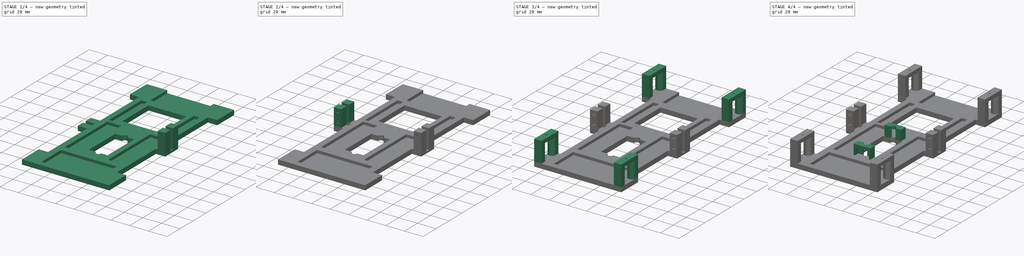
[diagram: build sequence overview — one tinted view per stage of 4, left to right]
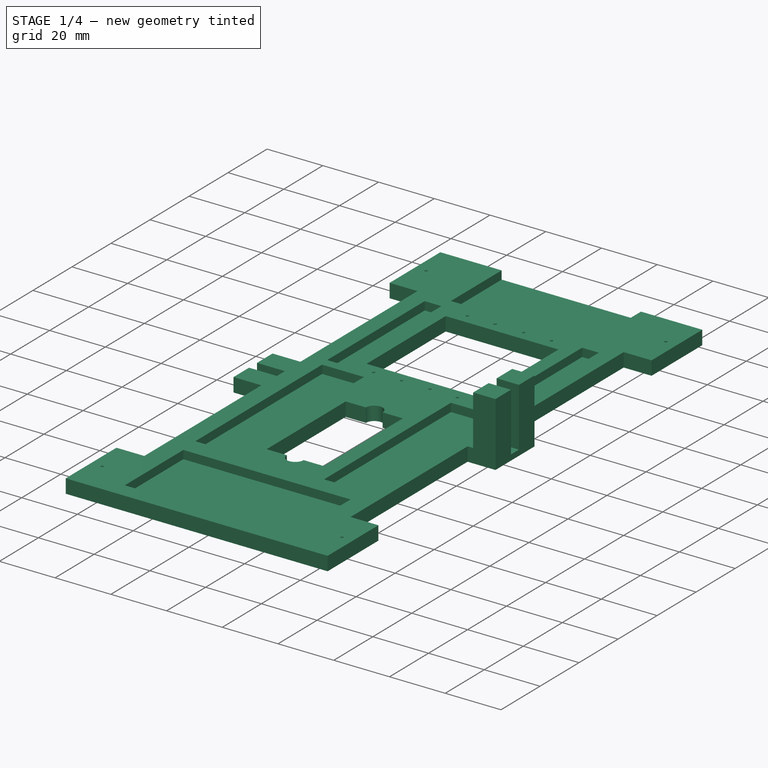
[diagram: stage 1 of 4 — iso view after this stage's code; geometry added in this stage tinted green]
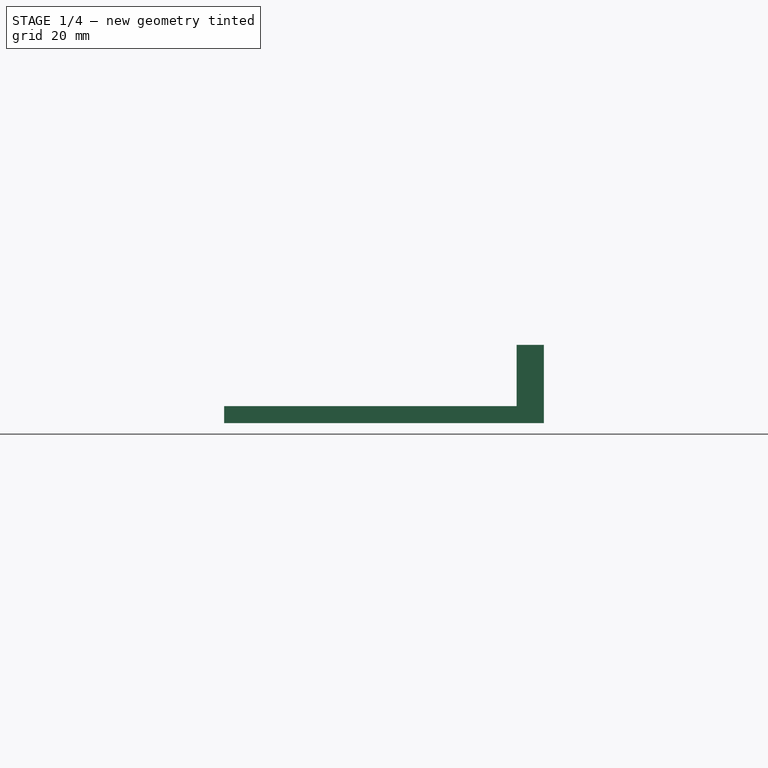
[diagram: stage 1 of 4 — front view after this stage's code; geometry added in this stage tinted green]
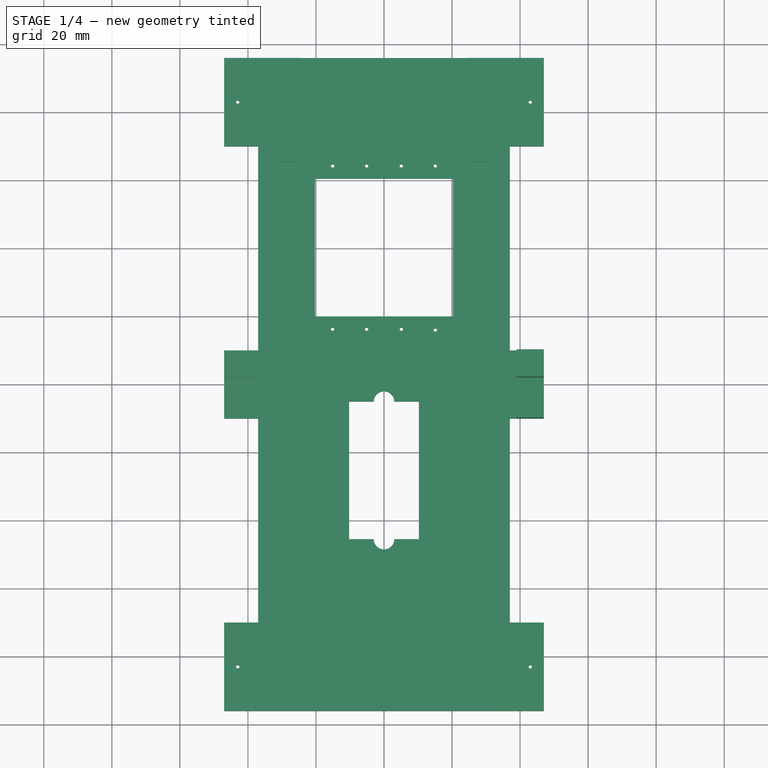
[diagram: stage 1 of 4 — top view after this stage's code; geometry added in this stage tinted green]
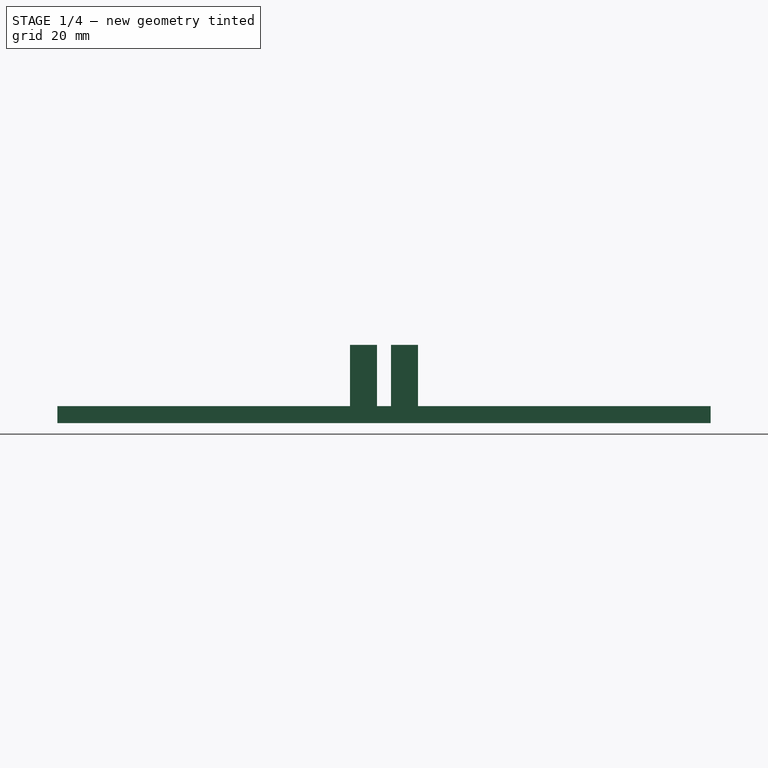
[diagram: stage 1 of 4 — right view after this stage's code; geometry added in this stage tinted green]
FCSTD DOCUMENT  (FreeCAD 0.14R3700 (Git))
Label: corps t
License: CC-BY 3.0
LicenseURL: http://creativecommons.org/licenses/by/3.0/
objects: Sketcher::SketchObject×9, PartDesign::Pad×5, PartDesign::Pocket×4, PartDesign::Mirrored×4
note: 31 computed .brp shape members not serialized (recipe doc carries the construction recipe); baked Part::Feature solids carry a one-line shape summary decoded from their .brp

FEATURE [Sketcher::SketchObject] Sketch
  sketch-geometry (44):
    g0: LineSegment StartX=-47 StartY=96 StartZ=0 EndX=47 EndY=96 EndZ=0
    g1: LineSegment StartX=47 StartY=96 StartZ=0 EndX=47 EndY=70 EndZ=0
    g2: LineSegment StartX=47 StartY=70 StartZ=0 EndX=37 EndY=70 EndZ=0
    g3: LineSegment StartX=37 StartY=70 StartZ=0 EndX=37 EndY=10 EndZ=0
    g4: LineSegment StartX=37 StartY=10 StartZ=0 EndX=47 EndY=10 EndZ=0
    g5: LineSegment StartX=47 StartY=10 StartZ=0 EndX=47 EndY=-10 EndZ=0
    g6: LineSegment StartX=47 StartY=-10 StartZ=0 EndX=37 EndY=-10 EndZ=0
    g7: LineSegment StartX=37 StartY=-10 StartZ=0 EndX=37 EndY=-70 EndZ=0
    g8: LineSegment StartX=37 StartY=-70 StartZ=0 EndX=47 EndY=-70 EndZ=0
    g9: LineSegment StartX=47 StartY=-70 StartZ=0 EndX=47 EndY=-96 EndZ=0
    g10: LineSegment StartX=47 StartY=-96 StartZ=0 EndX=-47 EndY=-96 EndZ=0
    g11: LineSegment StartX=-47 StartY=-96 StartZ=0 EndX=-47 EndY=-70 EndZ=0
    g12: LineSegment StartX=-47 StartY=-70 StartZ=0 EndX=-37 EndY=-70 EndZ=0
    g13: LineSegment StartX=-37 StartY=-70 StartZ=0 EndX=-37 EndY=-10 EndZ=0
    g14: LineSegment StartX=-37 StartY=-10 StartZ=0 EndX=-47 EndY=-10 EndZ=0
    g15: LineSegment StartX=-47 StartY=-10 StartZ=0 EndX=-47 EndY=10 EndZ=0
    g16: LineSegment StartX=-47 StartY=10 StartZ=0 EndX=-37 EndY=10 EndZ=0
    g17: LineSegment StartX=-37 StartY=10 StartZ=0 EndX=-37 EndY=70 EndZ=0
    g18: LineSegment StartX=-37 StartY=70 StartZ=0 EndX=-47 EndY=70 EndZ=0
    g19: LineSegment StartX=-47 StartY=70 StartZ=0 EndX=-47 EndY=96 EndZ=0
    g20: LineSegment StartX=-20.25 StartY=60.5 StartZ=0 EndX=20.25 EndY=60.5 EndZ=0
    g21: LineSegment StartX=20.25 StartY=60.5 StartZ=0 EndX=20.25 EndY=20 EndZ=0
    g22: LineSegment StartX=20.25 StartY=20 StartZ=0 EndX=-20.25 EndY=20 EndZ=0
    g23: LineSegment StartX=-20.25 StartY=20 StartZ=0 EndX=-20.25 EndY=60.5 EndZ=0
    g24: LineSegment StartX=-10.25 StartY=-5 StartZ=0 EndX=-3 EndY=-5 EndZ=0
    g25: LineSegment StartX=10.25 StartY=-5 StartZ=0 EndX=10.25 EndY=-45.5 EndZ=0
    g26: LineSegment StartX=10.25 StartY=-45.5 StartZ=0 EndX=3 EndY=-45.5 EndZ=0
    g27: LineSegment StartX=-10.25 StartY=-45.5 StartZ=0 EndX=-10.25 EndY=-5 EndZ=0
    g28: Circle CenterX=-15.1 CenterY=64.25 CenterZ=0 NormalX=0 NormalY=0 NormalZ=1 Radius=0.5
    g29: Circle CenterX=-5.1 CenterY=64.25 CenterZ=0 NormalX=0 NormalY=0 NormalZ=1 Radius=0.5
    g30: Circle CenterX=5.1 CenterY=64.25 CenterZ=0 NormalX=0 NormalY=0 NormalZ=1 Radius=0.5
    g31: Circle CenterX=15.1 CenterY=64.25 CenterZ=0 NormalX=0 NormalY=0 NormalZ=1 Radius=0.5
    g32: Circle CenterX=-15.1 CenterY=16.25 CenterZ=0 NormalX=0 NormalY=0 NormalZ=1 Radius=0.5
    g33: Circle CenterX=-5.1 CenterY=16.25 CenterZ=0 NormalX=0 NormalY=0 NormalZ=1 Radius=0.5
    g34: Circle CenterX=5.1 CenterY=16.25 CenterZ=0 NormalX=0 NormalY=0 NormalZ=1 Radius=0.5
    g35: Circle CenterX=15.1 CenterY=16 CenterZ=0 NormalX=0 NormalY=0 NormalZ=1 Radius=0.5
    g36: ArcOfCircle CenterX=0 CenterY=-5 CenterZ=0 NormalX=0 NormalY=0 NormalZ=1 Radius=3 StartAngle=0 EndAngle=3.14159
    g37: ArcOfCircle CenterX=0 CenterY=-45.5 CenterZ=0 NormalX=0 NormalY=0 NormalZ=1 Radius=3 StartAngle=3.14159 EndAngle=6.28319
    g38: LineSegment StartX=-3 StartY=-45.5 StartZ=0 EndX=-10.25 EndY=-45.5 EndZ=0
    g39: LineSegment StartX=3 StartY=-5 StartZ=0 EndX=10.25 EndY=-5 EndZ=0
    g40: Circle CenterX=-43 CenterY=83 CenterZ=0 NormalX=0 NormalY=0 NormalZ=1 Radius=0.5
    g41: Circle CenterX=43 CenterY=83 CenterZ=0 NormalX=0 NormalY=0 NormalZ=1 Radius=0.5
    g42: Circle CenterX=43 CenterY=-83 CenterZ=0 NormalX=0 NormalY=0 NormalZ=1 Radius=0.5
    g43: Circle CenterX=-43 CenterY=-83 CenterZ=0 NormalX=0 NormalY=0 NormalZ=1 Radius=0.5
  constraints (113):
    c: Coincident(g0,g1)
    c: Coincident(g1,g2)
    c: Coincident(g2,g3)
    c: Coincident(g3,g4)
    c: Coincident(g4,g5)
    c: Coincident(g5,g6)
    c: Coincident(g6,g7)
    c: Coincident(g7,g8)
    c: Coincident(g8,g9)
    c: Coincident(g9,g10)
    c: Coincident(g10,g11)
    c: Coincident(g11,g12)
    c: Coincident(g12,g13)
    c: Coincident(g13,g14)
    c: Coincident(g14,g15)
    c: Coincident(g15,g16)
    c: Coincident(g16,g17)
    c: Coincident(g17,g18)
    c: Coincident(g18,g19)
    c: Coincident(g19,g0)
    c: DistanceX(g0) = 94
    c: Horizontal(g0)
    c: Symmetric(g0,g0,g-2)
    c: Vertical(g1)
    c: DistanceY(g1) = -26
    c: Vertical(g19)
    c: DistanceY(g19) = 26
    c: Horizontal(g18)
    c: DistanceX(g18) = -10
    c: Horizontal(g2)
    c: DistanceX(g2) = -10
    c: Vertical(g17)
    c: DistanceY(g17) = 60
    c: DistanceY(g-1,g0) = 96
    c: Horizontal(g16)
    c: DistanceX(g16) = 10
    c: Vertical(g15)
    c: DistanceY(g15) = 20
    c: Vertical(g3)
    c: DistanceY(g3) = -60
    c: Horizontal(g4)
    c: DistanceX(g4) = 10
    c: Vertical(g5)
    c: DistanceY(g5) = -20
    c: Horizontal(g14)
    c: DistanceX(g14) = -10
    c: Horizontal(g6)
    c: DistanceX(g6) = -10
    c: Vertical(g7)
    c: DistanceY(g7) = -60
    c: Horizontal(g8)
    c: DistanceX(g8) = 10
    c: Vertical(g9)
    c: DistanceY(g9) = -26
    c: Horizontal(g10)
    c: Vertical(g13)
    c: DistanceY(g13) = 60
    c: Horizontal(g12)
    c: DistanceX(g12) = 10
    c: Vertical(g11)
    c: Coincident(g20,g21)
    c: Coincident(g21,g22)
    c: Coincident(g22,g23)
    c: Coincident(g23,g20)
    c: Horizontal(g20)
    c: Vertical(g21)
    c: Vertical(g23)
    c: DistanceX(g22) = -40.5
    c: Symmetric(g21,g22,g-2)
    c: DistanceY(g21) = -40.5
    c: DistanceY(g-1,g21) = 20
    c: Coincident(g39,g25)
    c: Coincident(g25,g26)
    c: Coincident(g38,g27)
    c: Coincident(g27,g24)
    c: Horizontal(g24)
    c: Horizontal(g26)
    c: Vertical(g25)
    c: Vertical(g27)
    c: DistanceY(g25) = -40.5
    c: Symmetric(g38,g25,g-2)
    c: DistanceY(g-1,g24) = -5
    c: DistanceX(g28,g29) = 10
    c: DistanceX(g30,g29) = -10.2
    c: Symmetric(g29,g30,g-2)
    c: DistanceX(g31,g30) = -10
    c: Radius(g28) = 0.5
    c: DistanceY(g28) = 64.25
    c: DistanceY(g29,g28) = 0
    c: DistanceY(g31,g30) = 0
    c: DistanceX(g32,g33) = 10
    c: DistanceX(g35,g34) = -10
    c: DistanceY(g32,g28) = 48
    c: Radius(g36) = 3
    c: Radius(g37) = 3
    c: Coincident(g38,g37)
    c: Coincident(g39,g36)
    c: Coincident(g24,g36)
    c: Coincident(g26,g37)
    c: Symmetric(g33,g34,g-2)
    c: PointOnObject(g36,g-2)
    c: DistanceX(g-1,g43) = -43
    c: DistanceX(g-1,g42) = 43
    c: DistanceY(g-1,g43) = -83
    c: Radius(g43) = 0.5
    c: DistanceX(g-1,g40) = -43
    c: DistanceX(g-1,g41) = 43
    c: DistanceY(g-1,g41) = 83
    c: DistanceY(g-1,g40) = 83
    c: Radius(g40) = 0.5
    c: Radius(g41) = 0.5
    c: DistanceY(g-1,g42) = -83
    c: Radius(g42) = 0.5
FEATURE [PartDesign::Pad] Pad
  Length = 5
  Length2 = 5
  Sketch = -> Sketch
  Type = 0
FEATURE [Sketcher::SketchObject] Sketch001
  Placement = pos=(0,0,5) rot=(0,0,1;0rad)
  Support = -> Pad [Face46]
  sketch-geometry (32):
    g0: LineSegment StartX=-25 StartY=99.0976 StartZ=0 EndX=25 EndY=99.0976 EndZ=0
    g1: LineSegment StartX=25 StartY=99.0976 StartZ=0 EndX=25 EndY=70 EndZ=0
    g2: LineSegment StartX=25 StartY=70 StartZ=0 EndX=-25 EndY=70 EndZ=0
    g3: LineSegment StartX=-25 StartY=70 StartZ=0 EndX=-25 EndY=99.0976 EndZ=0
    g4: LineSegment StartX=-31.2412 StartY=65.4792 StartZ=0 EndX=-25.2412 EndY=65.4792 EndZ=0
    g5: LineSegment StartX=-25.2412 StartY=65.4792 StartZ=0 EndX=-25.2412 EndY=15.4792 EndZ=0
    g6: LineSegment StartX=-25.2412 StartY=15.4792 StartZ=0 EndX=-31.2412 EndY=15.4792 EndZ=0
    g7: LineSegment StartX=-31.2412 StartY=15.4792 StartZ=0 EndX=-31.2412 EndY=65.4792 EndZ=0
    g8: LineSegment StartX=25.2412 StartY=65.4792 StartZ=0 EndX=31.2412 EndY=65.4792 EndZ=0
    g9: LineSegment StartX=31.2412 StartY=65.4792 StartZ=0 EndX=31.2412 EndY=15.4792 EndZ=0
    g10: LineSegment StartX=31.2412 StartY=15.4792 StartZ=0 EndX=25.2412 EndY=15.4792 EndZ=0
    g11: LineSegment StartX=25.2412 StartY=15.4792 StartZ=0 EndX=25.2412 EndY=65.4792 EndZ=0
    g12: LineSegment StartX=-58.5958 StartY=2.05 StartZ=0 EndX=-37 EndY=2.05 EndZ=0
    g13: LineSegment StartX=-37 StartY=2.05 StartZ=0 EndX=-37 EndY=-2.05 EndZ=0
    g14: LineSegment StartX=-37 StartY=-2.05 StartZ=0 EndX=-58.5958 EndY=-2.05 EndZ=0
    g15: LineSegment StartX=-58.5958 StartY=-2.05 StartZ=0 EndX=-58.5958 EndY=2.05 EndZ=0
    g16: LineSegment StartX=37 StartY=2.05 StartZ=0 EndX=57.1107 EndY=2.05 EndZ=0
    g17: LineSegment StartX=57.1107 StartY=2.05 StartZ=0 EndX=57.1107 EndY=-2.05 EndZ=0
    g18: LineSegment StartX=57.1107 StartY=-2.05 StartZ=0 EndX=37 EndY=-2.05 EndZ=0
    g19: LineSegment StartX=37 StartY=-2.05 StartZ=0 EndX=37 EndY=2.05 EndZ=0
    g20: LineSegment StartX=-30.6109 StartY=12 StartZ=0 EndX=-15.6109 EndY=12 EndZ=0
    g21: LineSegment StartX=-15.6109 StartY=12 StartZ=0 EndX=-15.6109 EndY=-53 EndZ=0
    g22: LineSegment StartX=-15.6109 StartY=-53 StartZ=0 EndX=-30.6109 EndY=-53 EndZ=0
    g23: LineSegment StartX=-30.6109 StartY=-53 StartZ=0 EndX=-30.6109 EndY=12 EndZ=0
    g24: LineSegment StartX=15.6109 StartY=12 StartZ=0 EndX=30.6109 EndY=12 EndZ=0
    g25: LineSegment StartX=30.6109 StartY=12 StartZ=0 EndX=30.6109 EndY=-53 EndZ=0
    g26: LineSegment StartX=30.6109 StartY=-53 StartZ=0 EndX=15.6109 EndY=-53 EndZ=0
    g27: LineSegment StartX=15.6109 StartY=-53 StartZ=0 EndX=15.6109 EndY=12 EndZ=0
    g28: LineSegment StartX=-30 StartY=-60 StartZ=0 EndX=30 EndY=-60 EndZ=0
    g29: LineSegment StartX=30 StartY=-60 StartZ=0 EndX=30 EndY=-90 EndZ=0
    g30: LineSegment StartX=30 StartY=-90 StartZ=0 EndX=-30 EndY=-90 EndZ=0
    g31: LineSegment StartX=-30 StartY=-90 StartZ=0 EndX=-30 EndY=-60 EndZ=0
  constraints (88):
    c: Coincident(g0,g1)
    c: Coincident(g1,g2)
    c: Coincident(g2,g3)
    c: Coincident(g3,g0)
    c: Horizontal(g0)
    c: Horizontal(g2)
    c: Vertical(g1)
    c: Vertical(g3)
    c: DistanceX(g0) = 50
    c: Symmetric(g0,g0,g-2)
    c: DistanceY(g-1,g1) = 70
    c: Coincident(g4,g5)
    c: Coincident(g5,g6)
    c: Coincident(g6,g7)
    c: Coincident(g7,g4)
    c: Horizontal(g4)
    c: Horizontal(g6)
    c: Vertical(g5)
    c: Vertical(g7)
    c: Coincident(g8,g9)
    c: Coincident(g9,g10)
    c: Coincident(g10,g11)
    c: Coincident(g11,g8)
    c: Horizontal(g8)
    c: Horizontal(g10)
    c: Vertical(g9)
    c: Vertical(g11)
    c: DistanceX(g4) = 6
    c: DistanceX(g8) = 6
    c: Symmetric(g4,g8,g-2)
    c: DistanceY(g9) = -50
    c: DistanceY(g7) = 50
    c: Coincident(g12,g13)
    c: Coincident(g13,g14)
    c: Coincident(g14,g15)
    c: Coincident(g15,g12)
    c: Horizontal(g12)
    c: Horizontal(g14)
    c: Vertical(g13)
    c: Vertical(g15)
    c: Coincident(g16,g17)
    c: Coincident(g17,g18)
    c: Coincident(g18,g19)
    c: Coincident(g19,g16)
    c: Horizontal(g16)
    c: Horizontal(g18)
    c: Vertical(g17)
    c: Vertical(g19)
    c: Coincident(g20,g21)
    c: Coincident(g21,g22)
    c: Coincident(g22,g23)
    c: Coincident(g23,g20)
    c: Horizontal(g20)
    c: Horizontal(g22)
    c: Vertical(g21)
    c: Vertical(g23)
    c: Coincident(g24,g25)
    c: Coincident(g25,g26)
    c: Coincident(g26,g27)
    c: Coincident(g27,g24)
    c: Horizontal(g24)
    c: Horizontal(g26)
    c: Vertical(g25)
    c: Vertical(g27)
    c: Coincident(g28,g29)
    c: Coincident(g29,g30)
    c: Coincident(g30,g31)
    c: Coincident(g31,g28)
    c: Horizontal(g28)
    c: Horizontal(g30)
    c: Vertical(g29)
    c: Vertical(g31)
    c: Symmetric(g20,g24,g-2)
    c: DistanceX(g24) = 15
    c: DistanceX(g20) = 15
    c: DistanceY(g17) = -4.1
    c: Symmetric(g17,g16,g-1)
    c: DistanceY(g15) = 4.1
    c: Symmetric(g12,g13,g-1)
    c: Symmetric(g13,g18,g-2)
    c: DistanceX(g13,g18) = 74
    c: DistanceY(g21) = -65
    c: DistanceY(g27) = 65
    c: DistanceY(g-1,g20) = 12
    c: DistanceX(g28) = 60
    c: Symmetric(g28,g28,g-2)
    c: DistanceY(g29) = -30
    c: DistanceY(g-1,g28) = -60
FEATURE [PartDesign::Pocket] Pocket
  Length = 3
  Sketch = -> Sketch001
  Type = 0
FEATURE [Sketcher::SketchObject] Sketch002
  Placement = pos=(0,0,5) rot=(0,0,1;0rad)
  Support = -> Pocket [Face4]
  sketch-geometry (8):
    g0: LineSegment StartX=39 StartY=10 StartZ=0 EndX=47 EndY=10 EndZ=0
    g1: LineSegment StartX=47 StartY=10 StartZ=0 EndX=47 EndY=2.05 EndZ=0
    g2: LineSegment StartX=47 StartY=2.05 StartZ=0 EndX=39 EndY=2.05 EndZ=0
    g3: LineSegment StartX=39 StartY=2.05 StartZ=0 EndX=39 EndY=10 EndZ=0
    g4: LineSegment StartX=39 StartY=-2.05 StartZ=0 EndX=47 EndY=-2.05 EndZ=0
    g5: LineSegment StartX=47 StartY=-2.05 StartZ=0 EndX=47 EndY=-10 EndZ=0
    g6: LineSegment StartX=47 StartY=-10 StartZ=0 EndX=39 EndY=-10 EndZ=0
    g7: LineSegment StartX=39 StartY=-10 StartZ=0 EndX=39 EndY=-2.05 EndZ=0
  constraints (23):
    c: Coincident(g0,g1)
    c: Coincident(g1,g2)
    c: Coincident(g2,g3)
    c: Coincident(g3,g0)
    c: Horizontal(g0)
    c: Horizontal(g2)
    c: Vertical(g1)
    c: Vertical(g3)
    c: Coincident(g4,g5)
    c: Coincident(g5,g6)
    c: Coincident(g6,g7)
    c: Coincident(g7,g4)
    c: Horizontal(g4)
    c: Horizontal(g6)
    c: Vertical(g5)
    c: Vertical(g7)
    c: Symmetric(g4,g1,g-1)
    c: DistanceY(g1,g4) = -4.1
    c: DistanceY(g1) = -7.95
    c: DistanceY(g5) = -7.95
    c: DistanceX(g2) = -8
    c: DistanceX(g6) = -8
    c: DistanceX(g-1,g5) = 47
FEATURE [PartDesign::Pad] Pad001
  Length = 18
  Length2 = 18
  Sketch = -> Sketch002
  Type = 0
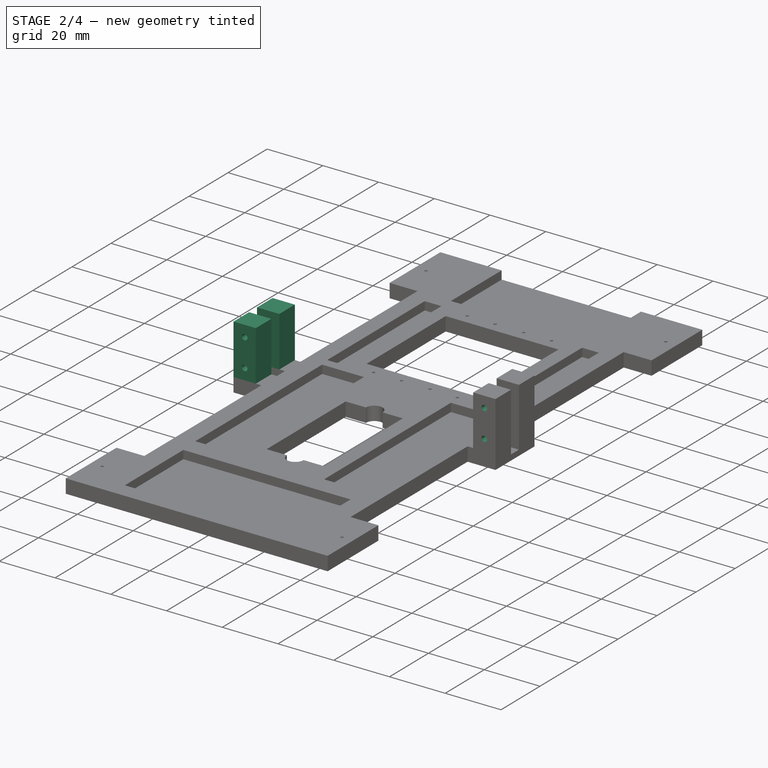
[diagram: stage 2 of 4 — iso view after this stage's code; geometry added in this stage tinted green]
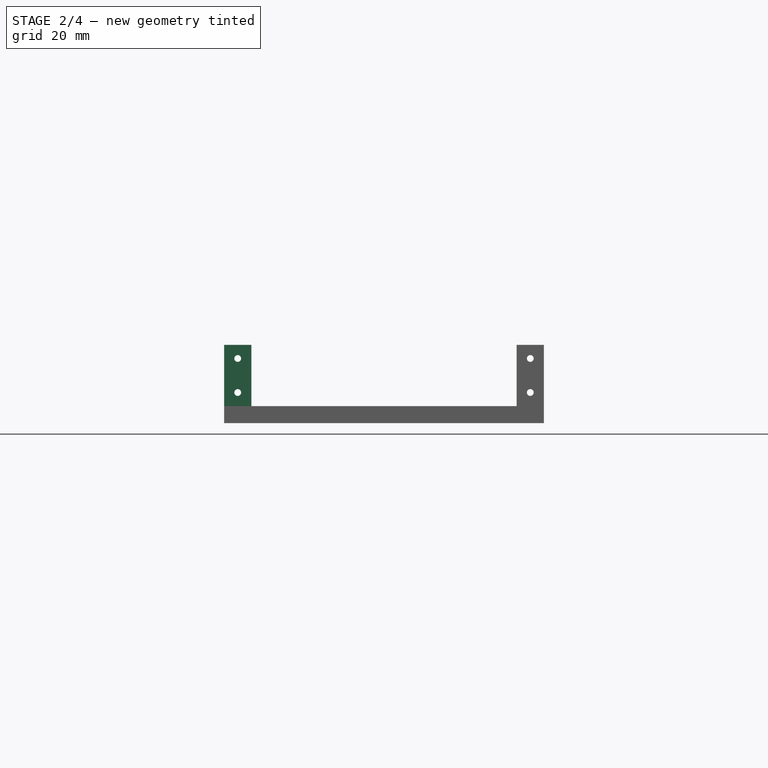
[diagram: stage 2 of 4 — front view after this stage's code; geometry added in this stage tinted green]
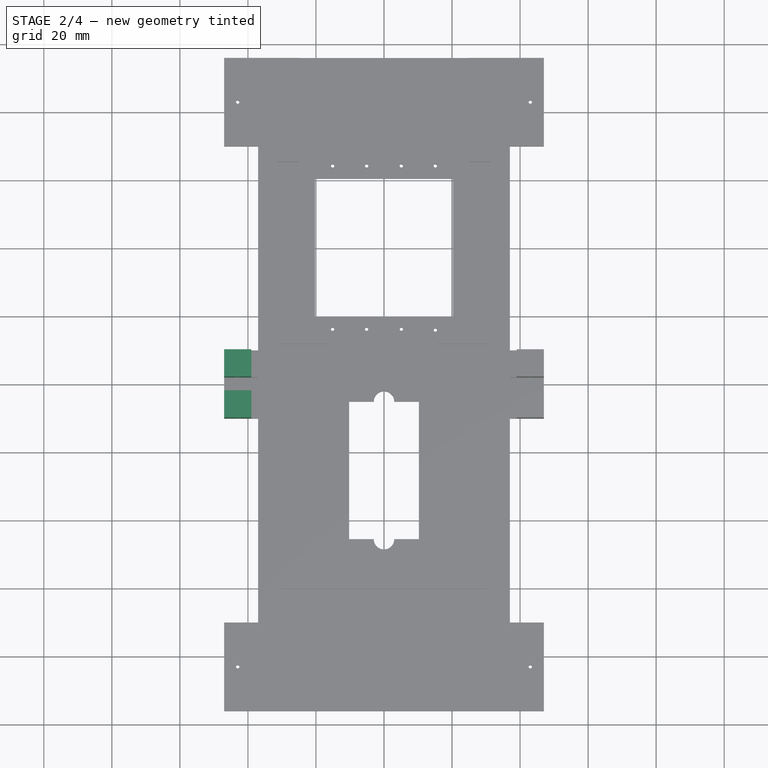
[diagram: stage 2 of 4 — top view after this stage's code; geometry added in this stage tinted green]
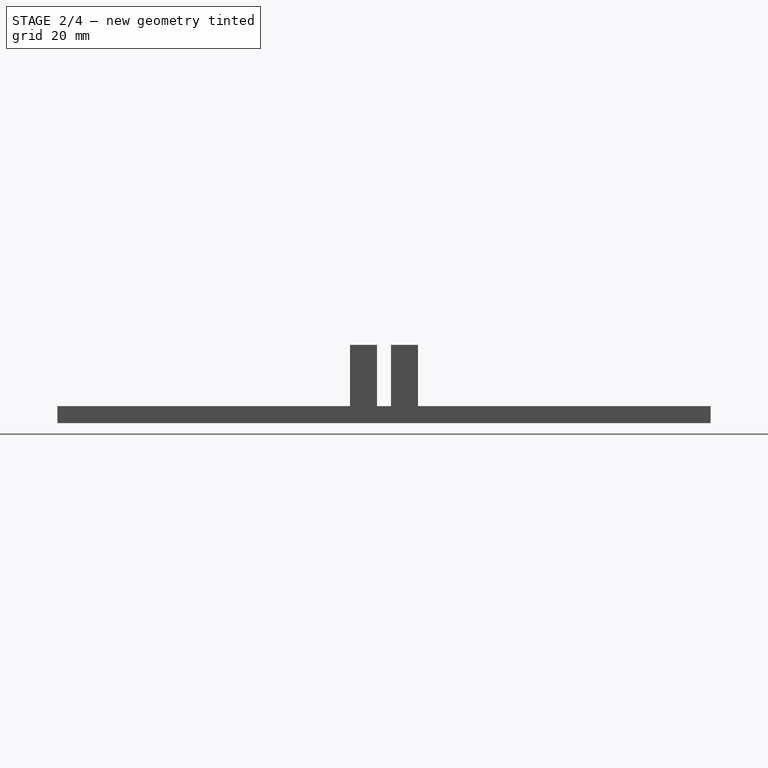
[diagram: stage 2 of 4 — right view after this stage's code; geometry added in this stage tinted green]
FEATURE [PartDesign::Mirrored] Mirrored
  MirrorPlane = -> Sketch002 [V_Axis]
  Originals = -> [Pad001]
FEATURE [Sketcher::SketchObject] Sketch003
  Placement = pos=(0,-10,0) rot=(1,0,0;1.5708rad)
  Support = -> Mirrored [Face85]
  sketch-geometry (2):
    g0: Circle CenterX=43 CenterY=19 CenterZ=0 NormalX=0 NormalY=0 NormalZ=1 Radius=1
    g1: Circle CenterX=43 CenterY=9 CenterZ=0 NormalX=0 NormalY=0 NormalZ=1 Radius=1
  constraints (6):
    c: DistanceY(g-1,g1) = 9
    c: DistanceY(g1,g0) = 10
    c: DistanceX(g0,g1) = 0
    c: Radius(g0) = 1
    c: DistanceX(g-1,g1) = 43
    c: Radius(g1) = 1
FEATURE [PartDesign::Pocket] Pocket001
  Length = 20
  Sketch = -> Sketch003
  Type = 0
FEATURE [PartDesign::Mirrored] Mirrored001
  MirrorPlane = -> Sketch003 [V_Axis]
  Originals = -> [Pocket001]
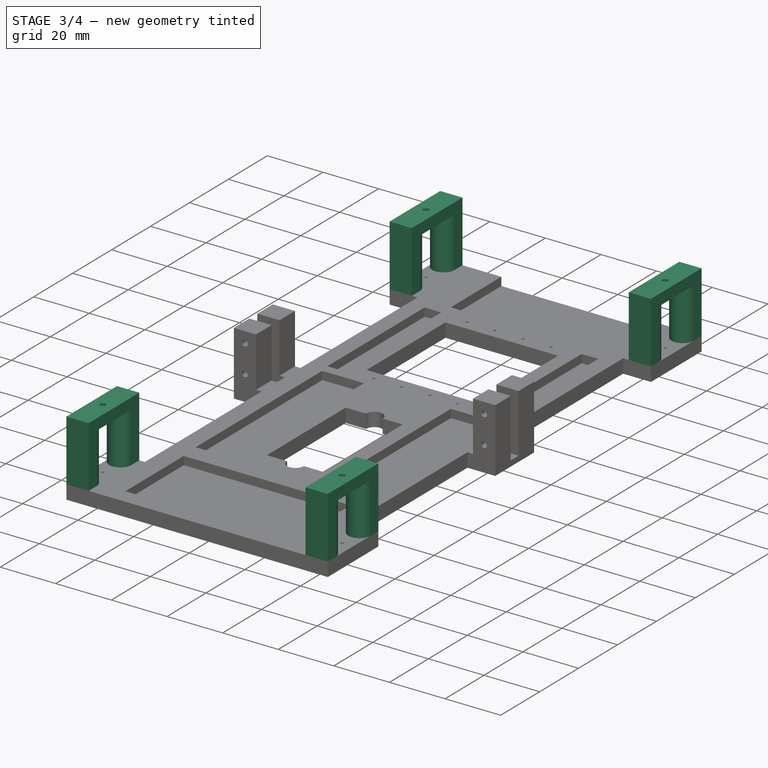
[diagram: stage 3 of 4 — iso view after this stage's code; geometry added in this stage tinted green]
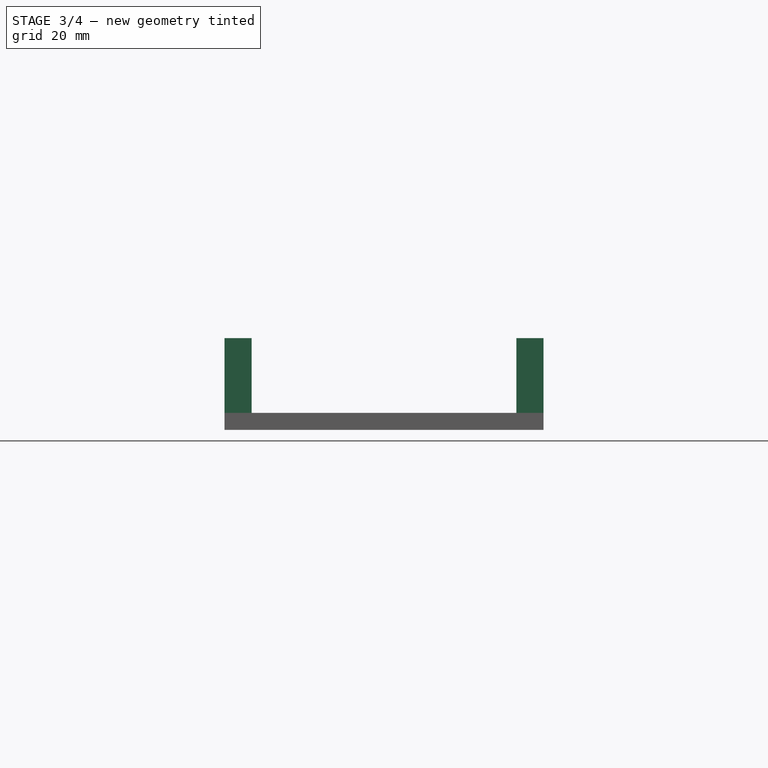
[diagram: stage 3 of 4 — front view after this stage's code; geometry added in this stage tinted green]
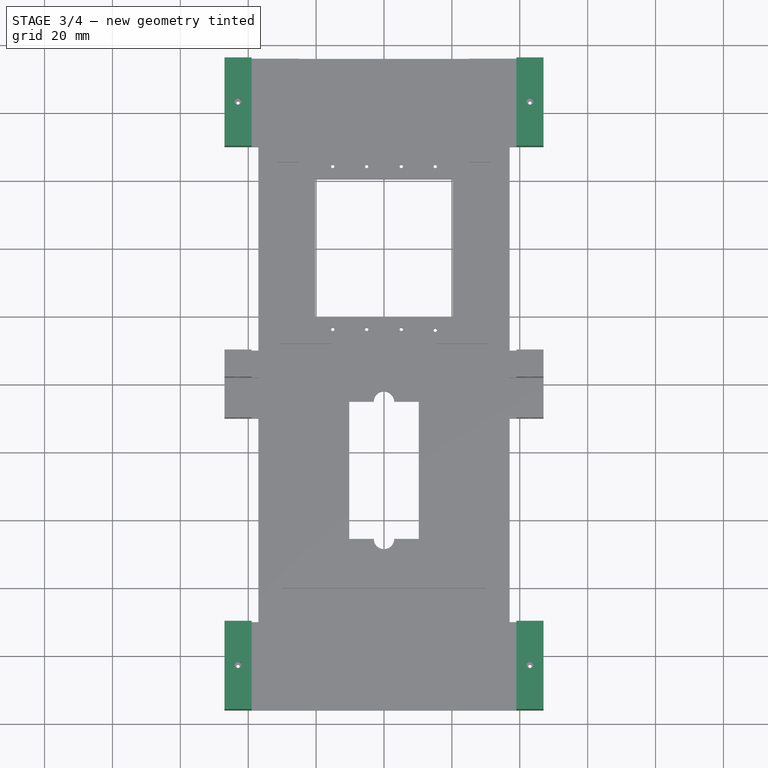
[diagram: stage 3 of 4 — top view after this stage's code; geometry added in this stage tinted green]
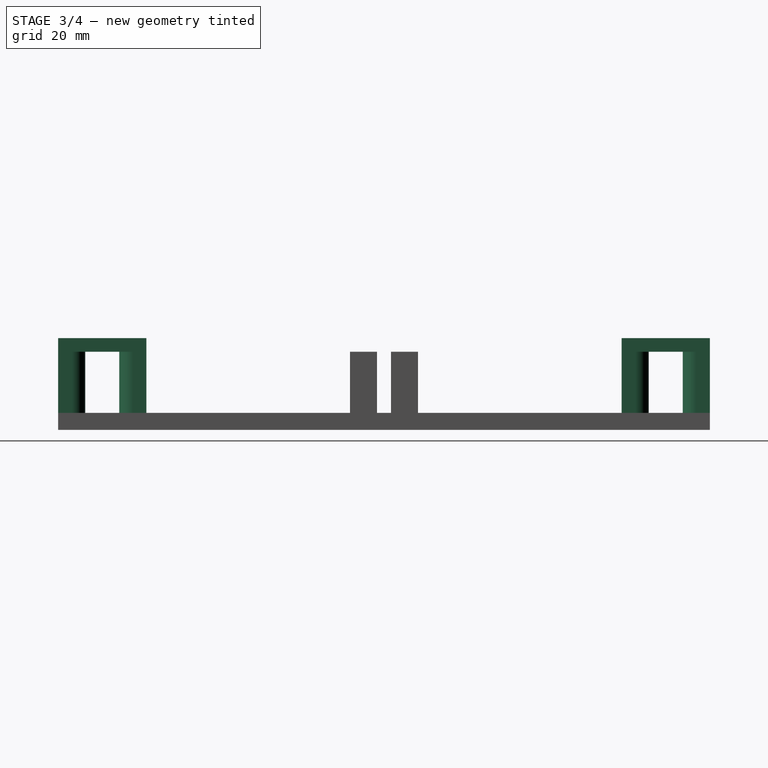
[diagram: stage 3 of 4 — right view after this stage's code; geometry added in this stage tinted green]
FEATURE [Sketcher::SketchObject] Sketch004
  Placement = pos=(0,0,5) rot=(0,0,1;0rad)
  Support = -> Mirrored001 [Face4]
  sketch-geometry (16):
    g0: LineSegment StartX=39 StartY=96 StartZ=0 EndX=47 EndY=96 EndZ=0
    g1: LineSegment StartX=47 StartY=96 StartZ=0 EndX=47 EndY=92 EndZ=0
    g2: LineSegment StartX=39 StartY=92 StartZ=0 EndX=39 EndY=96 EndZ=0
    g3: ArcOfCircle CenterX=43 CenterY=92 CenterZ=0 NormalX=0 NormalY=0 NormalZ=1 Radius=4 StartAngle=3.14159 EndAngle=6.28319
    g4: LineSegment StartX=47 StartY=74 StartZ=0 EndX=47 EndY=70 EndZ=0
    g5: LineSegment StartX=47 StartY=70 StartZ=0 EndX=39 EndY=70 EndZ=0
    g6: LineSegment StartX=39 StartY=70 StartZ=0 EndX=39 EndY=74 EndZ=0
    g7: ArcOfCircle CenterX=43 CenterY=74 CenterZ=0 NormalX=0 NormalY=0 NormalZ=1 Radius=4 StartAngle=3.08605e-06 EndAngle=3.1416
    g8: LineSegment StartX=39 StartY=-70 StartZ=0 EndX=47 EndY=-70 EndZ=0
    g9: LineSegment StartX=47 StartY=-70 StartZ=0 EndX=47 EndY=-74 EndZ=0
    g10: LineSegment StartX=39 StartY=-74 StartZ=0 EndX=39 EndY=-70 EndZ=0
    g11: LineSegment StartX=47 StartY=-92 StartZ=0 EndX=47 EndY=-96 EndZ=0
    g12: LineSegment StartX=47 StartY=-96 StartZ=0 EndX=39 EndY=-96 EndZ=0
    g13: LineSegment StartX=39 StartY=-96 StartZ=0 EndX=39 EndY=-92 EndZ=0
    g14: ArcOfCircle CenterX=43 CenterY=-74 CenterZ=0 NormalX=0 NormalY=0 NormalZ=1 Radius=4 StartAngle=3.14159 EndAngle=6.28319
    g15: ArcOfCircle CenterX=43 CenterY=-92 CenterZ=0 NormalX=0 NormalY=0 NormalZ=1 Radius=4 StartAngle=0 EndAngle=3.14159
  constraints (56):
    c: Coincident(g0,g1)
    c: Coincident(g2,g0)
    c: Horizontal(g0)
    c: Vertical(g1)
    c: Vertical(g2)
    c: Coincident(g4,g5)
    c: Coincident(g5,g6)
    c: Horizontal(g5)
    c: Vertical(g4)
    c: Vertical(g6)
    c: DistanceX(g5) = -8
    c: Radius(g7) = 4
    c: Symmetric(g6,g4,g7)
    c: DistanceY(g6) = 4
    c: DistanceY(g-1,g4) = 70
    c: DistanceX(g-1,g4) = 47
    c: Coincident(g7,g6)
    c: Coincident(g7,g4)
    c: Radius(g3) = 4
    c: DistanceX(g0) = 8
    c: DistanceY(g2) = 4
    c: Symmetric(g2,g1,g3)
    c: DistanceX(g-1,g0) = 47
    c: DistanceY(g0,g4) = -26
    c: Coincident(g2,g3)
    c: Coincident(g1,g3)
    c: Coincident(g8,g9)
    c: Coincident(g10,g8)
    c: Horizontal(g8)
    c: Vertical(g9)
    c: Vertical(g10)
    c: Coincident(g11,g12)
    c: Coincident(g12,g13)
    c: Horizontal(g12)
    c: Vertical(g11)
    c: Vertical(g13)
    c: Radius(g14) = 4
    c: Radius(g15) = 4
    c: DistanceX(g8) = 8
    c: DistanceX(g12) = -8
    c: DistanceY(g10) = 4
    c: DistanceY(g13) = 4
    c: Symmetric(g13,g11,g15)
    c: Symmetric(g10,g9,g14)
    c: DistanceX(g-1,g11) = 47
    c: DistanceX(g-1,g8) = 47
    c: DistanceY(g-1,g8) = -70
    c: DistanceY(g8,g11) = -26
    c: Coincident(g13,g15)
    c: Coincident(g11,g15)
    c: Coincident(g10,g14)
    c: Coincident(g9,g14)
    c: Coincident(g9,g14)
    c: Coincident(g10,g14)
    c: Coincident(g13,g15)
    c: Coincident(g11,g15)
FEATURE [PartDesign::Pad] Pad002
  Length = 18
  Length2 = 18
  Sketch = -> Sketch004
  Type = 0
FEATURE [PartDesign::Mirrored] Mirrored002
  MirrorPlane = -> Sketch004 [V_Axis]
  Originals = -> [Pad002]
FEATURE [Sketcher::SketchObject] Sketch005
  Placement = pos=(0,0,23) rot=(0,0,1;0rad)
  Support = -> Mirrored002 [Face125]
  sketch-geometry (10):
    g0: LineSegment StartX=39 StartY=96 StartZ=0 EndX=47 EndY=96 EndZ=0
    g1: LineSegment StartX=47 StartY=96 StartZ=0 EndX=47 EndY=70 EndZ=0
    g2: LineSegment StartX=47 StartY=70 StartZ=0 EndX=39 EndY=70 EndZ=0
    g3: LineSegment StartX=39 StartY=70 StartZ=0 EndX=39 EndY=96 EndZ=0
    g4: Circle CenterX=43 CenterY=83 CenterZ=0 NormalX=0 NormalY=0 NormalZ=1 Radius=1
    g5: LineSegment StartX=39 StartY=-70 StartZ=0 EndX=47 EndY=-70 EndZ=0
    g6: LineSegment StartX=47 StartY=-70 StartZ=0 EndX=47 EndY=-96 EndZ=0
    g7: LineSegment StartX=47 StartY=-96 StartZ=0 EndX=39 EndY=-96 EndZ=0
    g8: LineSegment StartX=39 StartY=-96 StartZ=0 EndX=39 EndY=-70 EndZ=0
    g9: Circle CenterX=43 CenterY=-83 CenterZ=0 NormalX=0 NormalY=0 NormalZ=1 Radius=1
  constraints (30):
    c: Coincident(g0,g1)
    c: Coincident(g1,g2)
    c: Coincident(g2,g3)
    c: Coincident(g3,g0)
    c: Horizontal(g0)
    c: Horizontal(g2)
    c: Vertical(g1)
    c: Vertical(g3)
    c: DistanceY(g1) = -26
    c: DistanceX(g2) = -8
    c: DistanceY(g-1,g1) = 70
    c: DistanceX(g-1,g0) = 47
    c: DistanceX(g-1,g4) = 43
    c: DistanceY(g-1,g4) = 83
    c: Radius(g4) = 1
    c: Coincident(g5,g6)
    c: Coincident(g6,g7)
    c: Coincident(g7,g8)
    c: Coincident(g8,g5)
    c: Horizontal(g5)
    c: Horizontal(g7)
    c: Vertical(g6)
    c: Vertical(g8)
    c: DistanceX(g5) = 8
    c: DistanceY(g6) = -26
    c: DistanceY(g-1,g6) = -96
    c: DistanceX(g-1,g6) = 47
    c: DistanceX(g-1,g9) = 43
    c: DistanceY(g-1,g9) = -83
    c: Radius(g9) = 1
FEATURE [PartDesign::Pad] Pad003
  Length = 4
  Length2 = 18
  Sketch = -> Sketch005
  Type = 0
FEATURE [PartDesign::Mirrored] Mirrored003
  MirrorPlane = -> Sketch005 [V_Axis]
  Originals = -> [Pad003]
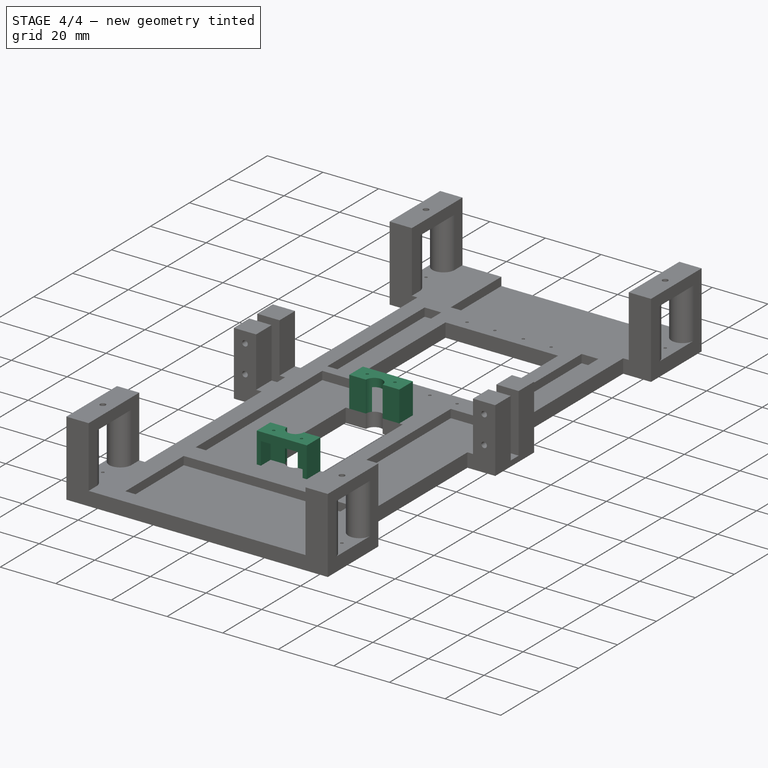
[diagram: stage 4 of 4 — iso view after this stage's code; geometry added in this stage tinted green]
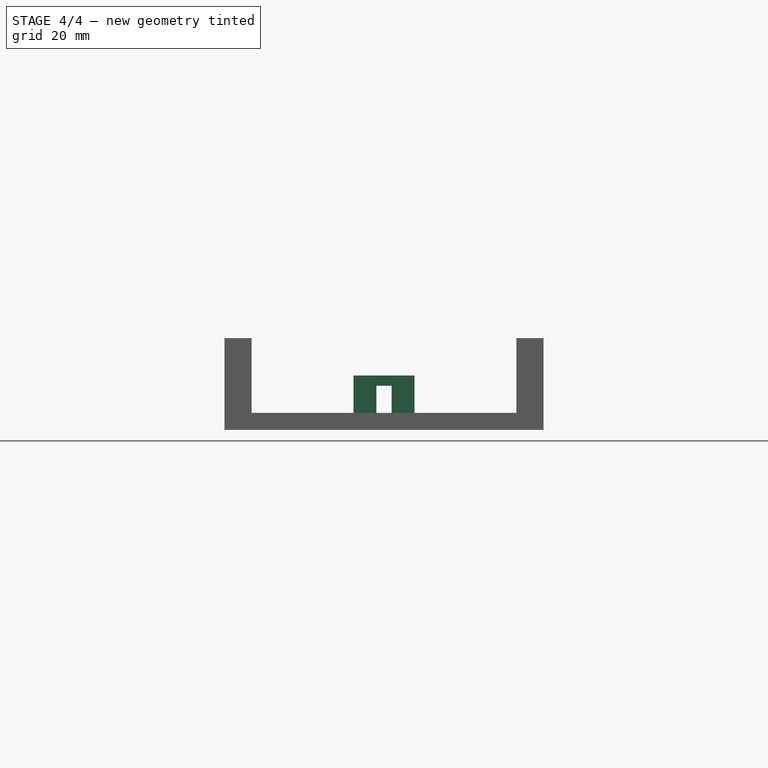
[diagram: stage 4 of 4 — front view after this stage's code; geometry added in this stage tinted green]
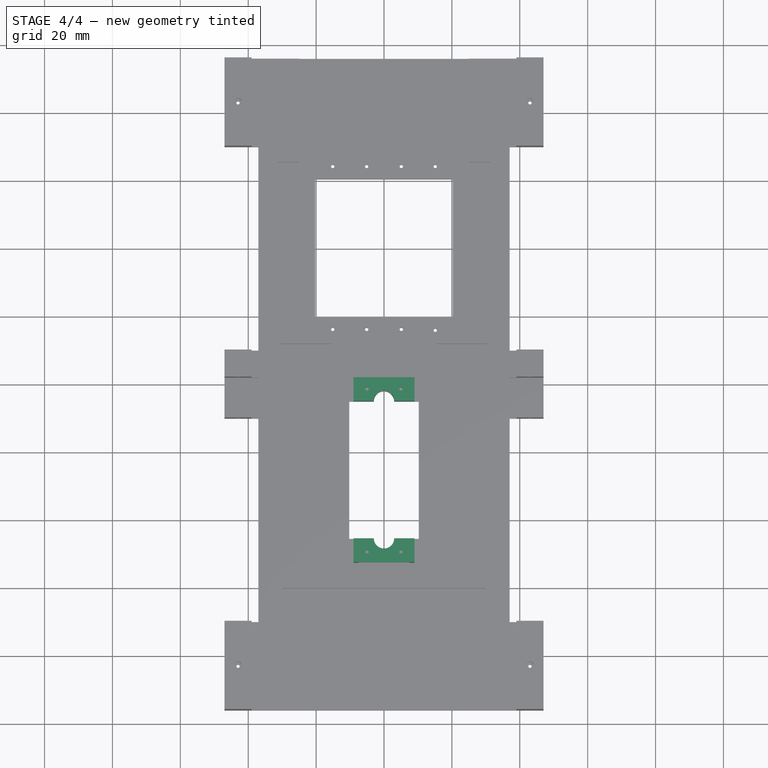
[diagram: stage 4 of 4 — top view after this stage's code; geometry added in this stage tinted green]
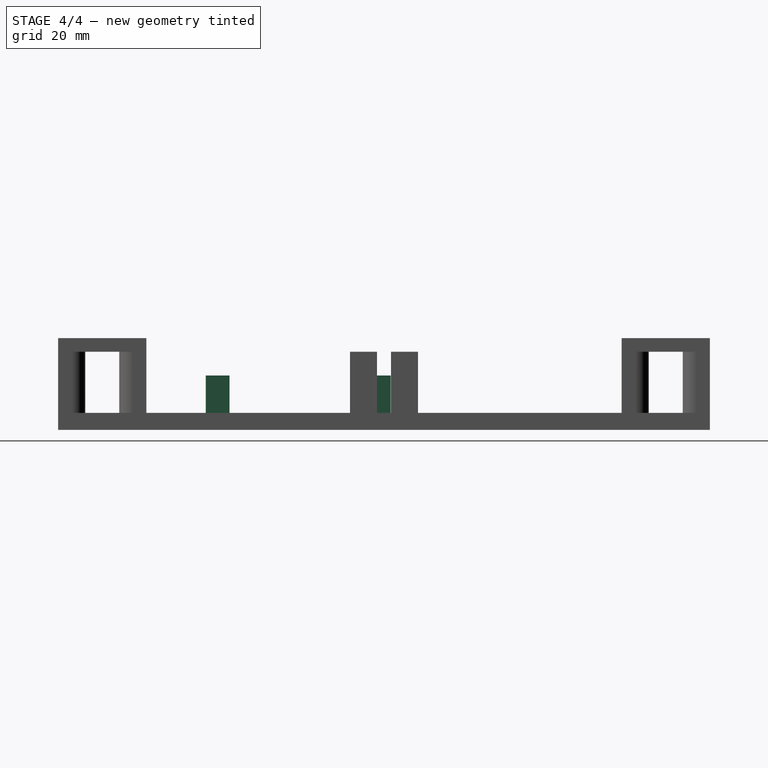
[diagram: stage 4 of 4 — right view after this stage's code; geometry added in this stage tinted green]
FEATURE [Sketcher::SketchObject] Sketch006
  Placement = pos=(0,0,5) rot=(0,0,1;0rad)
  Support = -> Mirrored003 [Face48]
  sketch-geometry (16):
    g0: LineSegment StartX=-9 StartY=2 StartZ=0 EndX=9 EndY=2 EndZ=0
    g1: LineSegment StartX=9 StartY=2 StartZ=0 EndX=9 EndY=-5 EndZ=0
    g2: LineSegment StartX=9 StartY=-5 StartZ=0 EndX=3 EndY=-5 EndZ=0
    g3: LineSegment StartX=-9 StartY=-5 StartZ=0 EndX=-9 EndY=2 EndZ=0
    g4: LineSegment StartX=-9 StartY=-45.5 StartZ=0 EndX=-3 EndY=-45.5 EndZ=0
    g5: LineSegment StartX=9 StartY=-45.5 StartZ=0 EndX=9 EndY=-52.5 EndZ=0
    g6: LineSegment StartX=9 StartY=-52.5 StartZ=0 EndX=-9 EndY=-52.5 EndZ=0
    g7: LineSegment StartX=-9 StartY=-52.5 StartZ=0 EndX=-9 EndY=-45.5 EndZ=0
    g8: ArcOfCircle CenterX=0 CenterY=-45.5 CenterZ=0 NormalX=0 NormalY=0 NormalZ=1 Radius=3 StartAngle=3.14159 EndAngle=6.28319
    g9: LineSegment StartX=3 StartY=-45.5 StartZ=0 EndX=9 EndY=-45.5 EndZ=0
    g10: ArcOfCircle CenterX=0 CenterY=-5 CenterZ=0 NormalX=0 NormalY=0 NormalZ=1 Radius=3 StartAngle=0 EndAngle=3.14159
    g11: LineSegment StartX=-3 StartY=-5 StartZ=0 EndX=-9 EndY=-5 EndZ=0
    g12: Circle CenterX=-5 CenterY=-1.5 CenterZ=0 NormalX=0 NormalY=0 NormalZ=1 Radius=0.5
    g13: Circle CenterX=5 CenterY=-1.5 CenterZ=0 NormalX=0 NormalY=0 NormalZ=1 Radius=0.5
    g14: Circle CenterX=-5 CenterY=-49.5 CenterZ=0 NormalX=0 NormalY=0 NormalZ=1 Radius=0.5
    g15: Circle CenterX=5 CenterY=-49.5 CenterZ=0 NormalX=0 NormalY=0 NormalZ=1 Radius=0.5
  constraints (42):
    c: Coincident(g0,g1)
    c: Coincident(g1,g2)
    c: Coincident(g11,g3)
    c: Coincident(g3,g0)
    c: Horizontal(g0)
    c: Horizontal(g2)
    c: Vertical(g1)
    c: Vertical(g3)
    c: DistanceY(g1) = -7
    c: DistanceX(g0) = 18
    c: Symmetric(g0,g0,g-2)
    c: DistanceY(g-1,g0) = 2
    c: Coincident(g9,g5)
    c: Coincident(g5,g6)
    c: Coincident(g6,g7)
    c: Coincident(g7,g4)
    c: Horizontal(g6)
    c: Vertical(g5)
    c: Vertical(g7)
    c: DistanceY(g5) = -7
    c: DistanceY(g9,g1) = 40.5
    c: Symmetric(g6,g5,g-2)
    c: Radius(g8) = 3
    c: PointOnObject(g8,g-2)
    c: Coincident(g8,g4)
    c: Coincident(g8,g9)
    c: DistanceX(g6) = -18
    c: Radius(g10) = 3
    c: Tangent(g2,g11)
    c: PointOnObject(g10,g-2)
    c: Coincident(g10,g2)
    c: Coincident(g10,g11)
    c: DistanceX(g12,g13) = 10
    c: Symmetric(g12,g13,g-2)
    c: DistanceY(g-1,g13) = -1.5
    c: Radius(g12) = 0.5
    c: Radius(g13) = 0.5
    c: DistanceX(g15,g14) = -10
    c: Symmetric(g14,g15,g-2)
    c: DistanceY(g15,g13) = 48
    c: Radius(g15) = 0.5
    c: Radius(g14) = 0.5
FEATURE [PartDesign::Pad] Pad004
  Length = 11
  Length2 = 18
  Sketch = -> Sketch006
  Type = 0
FEATURE [Sketcher::SketchObject] Sketch007
  Placement = pos=(0,-52.5,0) rot=(1,0,0;1.5708rad)
  Support = -> Pad004 [Face112]
  sketch-geometry (4):
    g0: LineSegment StartX=-7.5 StartY=13 StartZ=0 EndX=7.5 EndY=13 EndZ=0
    g1: LineSegment StartX=7.5 StartY=13 StartZ=0 EndX=7.5 EndY=5 EndZ=0
    g2: LineSegment StartX=7.5 StartY=5 StartZ=0 EndX=-7.5 EndY=5 EndZ=0
    g3: LineSegment StartX=-7.5 StartY=5 StartZ=0 EndX=-7.5 EndY=13 EndZ=0
  constraints (12):
    c: Coincident(g0,g1)
    c: Coincident(g1,g2)
    c: Coincident(g2,g3)
    c: Coincident(g3,g0)
    c: Horizontal(g0)
    c: Horizontal(g2)
    c: Vertical(g1)
    c: Vertical(g3)
    c: DistanceY(g1) = -8
    c: DistanceX(g0) = 15
    c: Symmetric(g0,g0,g-2)
    c: DistanceY(g-1,g1) = 5
FEATURE [PartDesign::Pocket] Pocket002
  Length = 5
  Sketch = -> Sketch007
  Type = 0
FEATURE [Sketcher::SketchObject] Sketch008
  Placement = pos=(0,2,0) rot=(0,0.707107,0.707107;3.14159rad)
  Support = -> Pocket002 [Face116]
  sketch-geometry (4):
    g0: LineSegment StartX=-7.5 StartY=13 StartZ=0 EndX=7.5 EndY=13 EndZ=0
    g1: LineSegment StartX=7.5 StartY=13 StartZ=0 EndX=7.5 EndY=5 EndZ=0
    g2: LineSegment StartX=7.5 StartY=5 StartZ=0 EndX=-7.5 EndY=5 EndZ=0
    g3: LineSegment StartX=-7.5 StartY=5 StartZ=0 EndX=-7.5 EndY=13 EndZ=0
  constraints (12):
    c: Coincident(g0,g1)
    c: Coincident(g1,g2)
    c: Coincident(g2,g3)
    c: Coincident(g3,g0)
    c: Horizontal(g0)
    c: Horizontal(g2)
    c: Vertical(g1)
    c: Vertical(g3)
    c: DistanceY(g1) = -8
    c: DistanceX(g0) = 15
    c: DistanceY(g-1,g1) = 5
    c: Symmetric(g0,g0,g-2)
FEATURE [PartDesign::Pocket] Pocket003
  Length = 5
  Sketch = -> Sketch008
  Type = 0
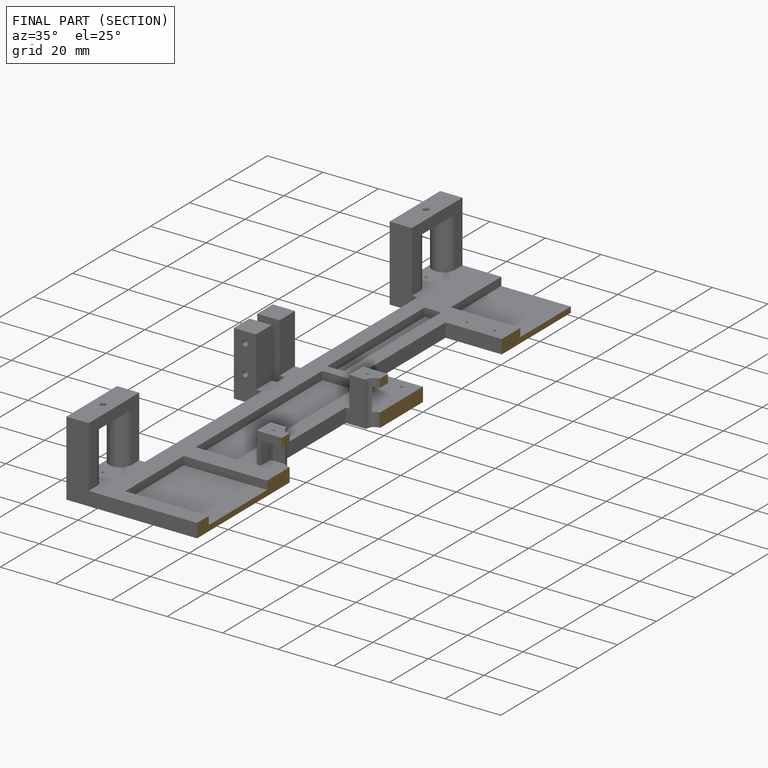
[diagram: finished part — half-section view (interior)]
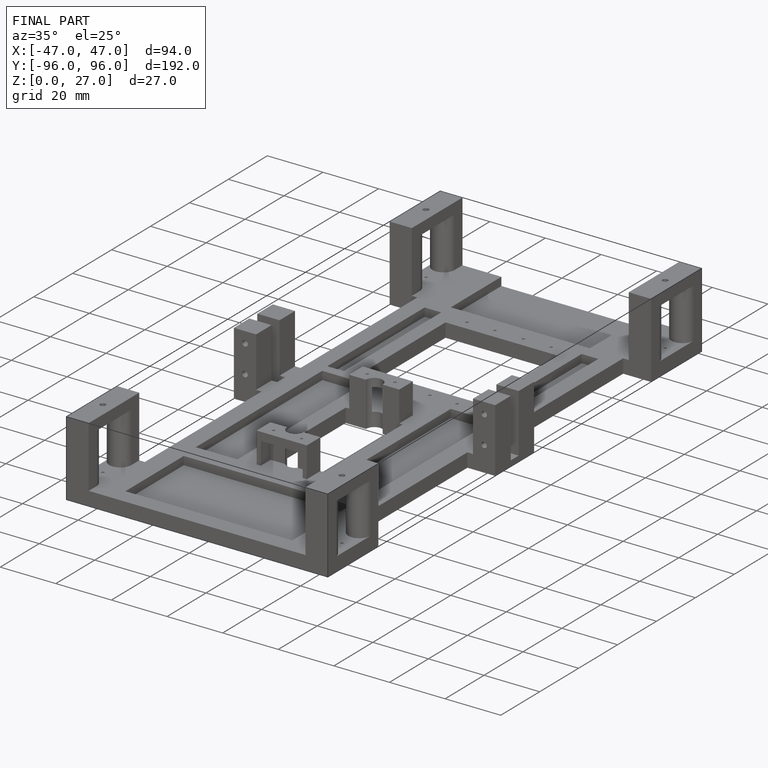
[diagram: finished part — iso view with bounding-box wireframe]
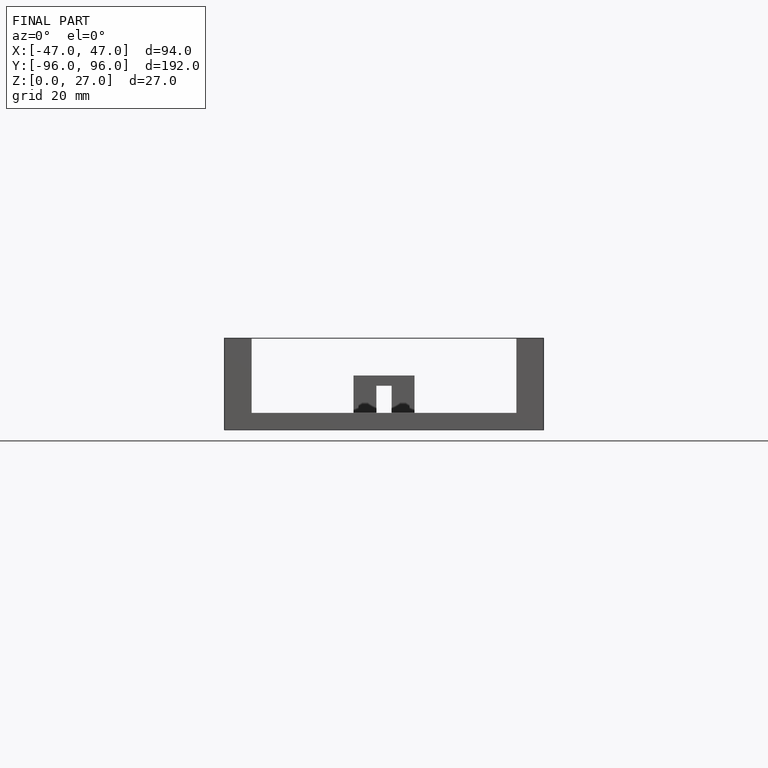
[diagram: finished part — front view with bounding-box wireframe]
